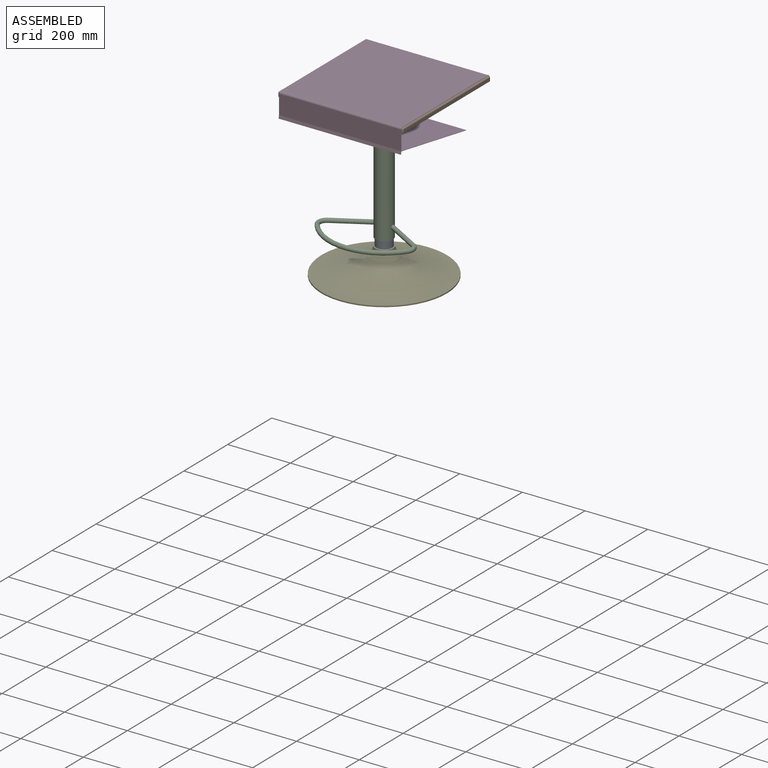
[diagram: assembled view]
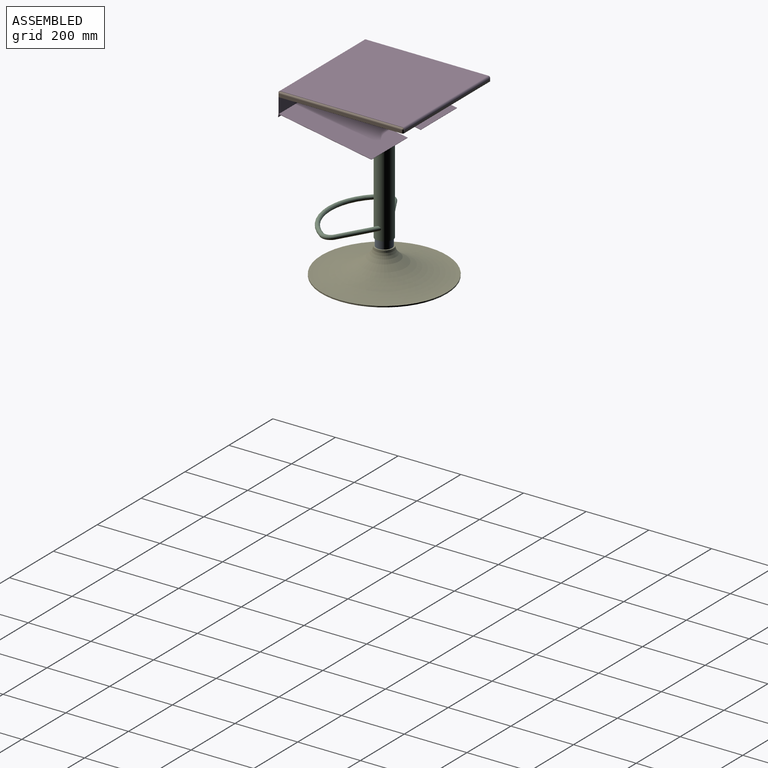
[diagram: assembled view, second angle]
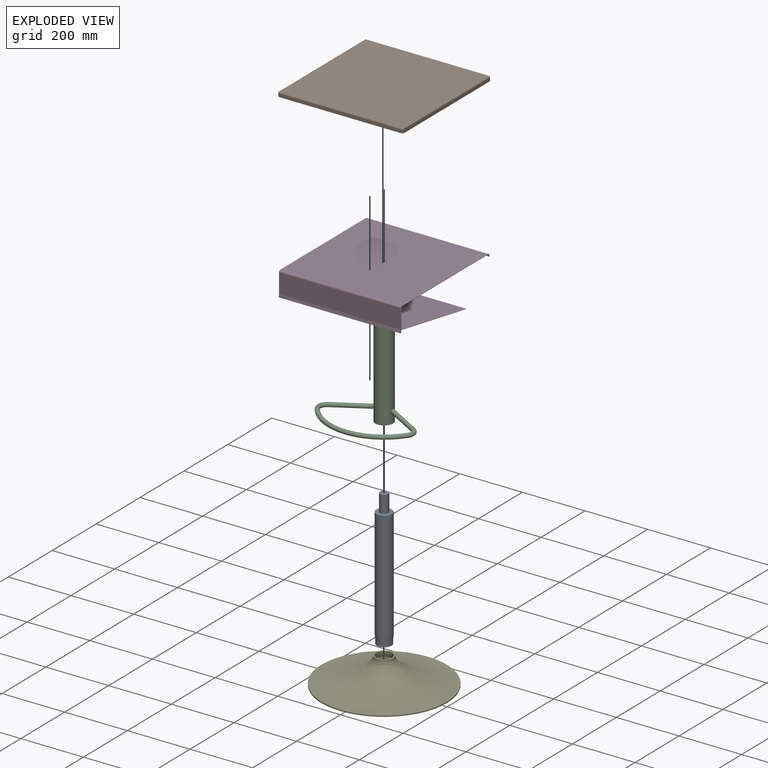
[diagram: exploded view]
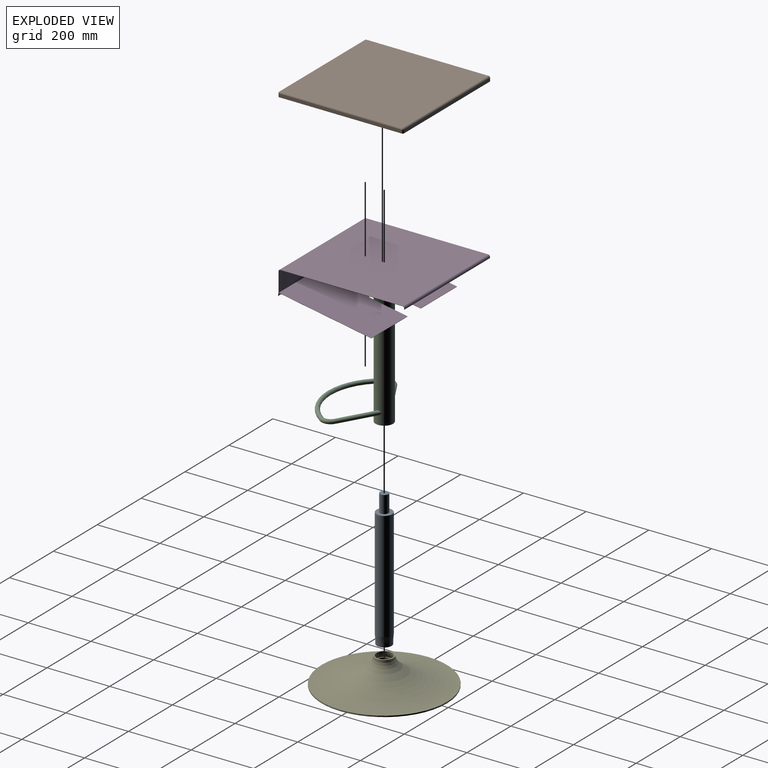
[diagram: exploded view, second angle]
ASSEMBLY  parts=5 mates=5
PART A: 7 faces, bbox 50x50x435 mm
  f0: cylinder r=25mm len=350mm, axis (0,0,-1), area 54977.9mm2, adj f1,f5
  f1: plane 50x50mm, normal (0,0,1), area 1390.9mm2, adj f0,f2
  f2: cylinder r=13.5mm len=55mm, axis (0,0,-1), area 4665.3mm2, adj f1,f3
  f3: plane 27x27mm, normal (0,0,1), area 572.6mm2, adj f2
  f4: cylinder r=23.5mm len=47mm, axis (0,0,1), area 1919.5mm2, adj f5,f6
  f5: cone r=25mm half-angle=5deg, axis (0,0,1), area 2600.3mm2, adj f0,f4
  f6: plane 47x47mm, normal (0,0,-1), area 1734.9mm2, adj f4
PART B: 34 faces, bbox 400x400x30 mm
  f0: plane 390x10mm, normal (0,-1,0), area 3900mm2, adj f5,f22,f27,f29
  f1: plane 390x10mm, normal (1,0,0), area 3900mm2, adj f5,f23,f27,f31
  f2: plane 390x10mm, normal (0,1,0), area 3900mm2, adj f5,f25,f31,f33
  f3: plane 390x10mm, normal (-1,0,0), area 3900mm2, adj f5,f24,f29,f33
  f4: plane 390x390mm, normal (0,0,1), area 152100mm2, adj f22,f23,f24,f25
  f5: plane 400x400mm, normal (0,0,-1), area 159664.4mm2, adj f0,f1,f2,f3,f7,f11,f15,f19
  f6: cylinder r=1.5mm len=15mm, axis (0,0,1), area 141.4mm2, adj f8,f9
  f7: cylinder r=5mm len=15mm, axis (0,0,1), area 471.2mm2, adj f5,f8
  f8: plane 10x10mm, normal (0,0,-1), area 71.5mm2, adj f6,f7
  f9: plane 3x3mm, normal (0,0,-1), area 7.1mm2, adj f6
  f10: cylinder r=1.5mm len=15mm, axis (0,0,1), area 141.4mm2, adj f12,f13
  f11: cylinder r=5mm len=15mm, axis (0,0,1), area 471.2mm2, adj f5,f12
  f12: plane 10x10mm, normal (0,0,-1), area 71.5mm2, adj f10,f11
  f13: plane 3x3mm, normal (0,0,-1), area 7.1mm2, adj f10
  f14: cylinder r=1.5mm len=15mm, axis (0,0,1), area 141.4mm2, adj f16,f17
  f15: cylinder r=5mm len=15mm, axis (0,0,1), area 471.2mm2, adj f5,f16
  f16: plane 10x10mm, normal (0,0,-1), area 71.5mm2, adj f14,f15
  f17: plane 3x3mm, normal (0,0,-1), area 7.1mm2, adj f14
  f18: cylinder r=1.5mm len=15mm, axis (0,0,1), area 141.4mm2, adj f20,f21
  f19: cylinder r=5mm len=15mm, axis (0,0,1), area 471.2mm2, adj f5,f20
  f20: plane 10x10mm, normal (0,0,-1), area 71.5mm2, adj f18,f19
  f21: plane 3x3mm, normal (0,0,-1), area 7.1mm2, adj f18
  f22: cylinder r=5mm len=390mm, axis (-1,0,0), area 3063.1mm2, adj f0,f4,f26,f28
  f23: cylinder r=5mm len=390mm, axis (0,-1,0), area 3063.1mm2, adj f1,f4,f26,f30
  f24: cylinder r=5mm len=390mm, axis (0,1,0), area 3063.1mm2, adj f3,f4,f28,f32
  f25: cylinder r=5mm len=390mm, axis (1,0,0), area 3063.1mm2, adj f2,f4,f30,f32
  f26: sphere r=5mm, area 39.3mm2, adj f22,f23,f27
  f27: cylinder r=5mm len=10mm, axis (0,0,1), area 78.5mm2, adj f0,f1,f5,f26
  f28: sphere r=5mm, area 39.3mm2, adj f22,f24,f29
  f29: cylinder r=5mm len=10mm, axis (0,0,-1), area 78.5mm2, adj f0,f3,f5,f28
  f30: sphere r=5mm, area 39.3mm2, adj f23,f25,f31
  f31: cylinder r=5mm len=10mm, axis (0,0,-1), area 78.5mm2, adj f1,f2,f5,f30
  f32: sphere r=5mm, area 39.3mm2, adj f24,f25,f33
  f33: cylinder r=5mm len=10mm, axis (0,0,1), area 78.5mm2, adj f2,f3,f5,f32
PART C: 34 faces, bbox 325.4x256.7x412 mm
  f0: plane 120x2mm, normal (0,1,0), area 240mm2, adj f1,f7,f8,f9
  f1: plane 120x2mm, normal (-1,0,0), area 240mm2, adj f0,f2,f8,f9
  f2: plane 120x2mm, normal (0,-1,0), area 240mm2, adj f1,f7,f8,f9
  f3: cylinder r=1.5mm len=3mm, axis (0,0,1), area 9.4mm2, adj f8,f23
  f4: cylinder r=1.5mm len=3mm, axis (0,0,1), area 9.4mm2, adj f8,f24
  f5: cylinder r=1.5mm len=3mm, axis (0,0,1), area 9.4mm2, adj f8,f26
  f6: cylinder r=1.5mm len=3mm, axis (0,0,1), area 9.4mm2, adj f8,f25
  f7: plane 120x2mm, normal (1,0,0), area 240mm2, adj f0,f2,f8,f9
  f8: plane 120x120mm, normal (0,0,-1), area 6845.2mm2, adj f0,f1,f2,f3,f4,f5,f6,f7
  f9: plane 120x120mm, normal (0,0,1), area 6467.5mm2, adj f0,f1,f2,f7,f10,f23,f24,f25
  f10: cone r=28mm half-angle=34.4deg, axis (0,0,-1), area 9531.6mm2, adj f9,f13
  f11: cone r=48.95mm half-angle=34.4deg, axis (0,0,-1), area 9258mm2, adj f8,f22
  f12: cylinder r=27mm len=355mm, axis (0,0,-1), area 60224.3mm2, adj f14,f21
  f13: cylinder r=28mm len=377.92mm, axis (0,0,-1), area 66150.9mm2, adj f10,f14,f16,f19
  f14: plane 56x56mm, normal (0,0,1), area 172.8mm2, adj f12,f13
  f15: torus R=25mm, axis (0,0,1), area 1743.3mm2, adj f16,f17
  f16: cylinder r=6.75mm len=120.02mm, axis (0.87,-0.5,0), area 5343.9mm2, adj f13,f15
  f17: torus R=175mm, axis (0,0,1), area 14455.1mm2, adj f15,f18
  f18: torus R=25mm, axis (0,0,1), area 1743.3mm2, adj f17,f19
  f19: cylinder r=6.75mm len=120.02mm, axis (0.87,0.5,0), area 5343.9mm2, adj f13,f18
  f20: cylinder r=13.5mm len=27mm, axis (0,0,-1), area 2120.6mm2, adj f21,f22
  f21: plane 54x54mm, normal (0,0,1), area 1717.7mm2, adj f12,f20
  f22: plane 54x54mm, normal (0,0,-1), area 1717.7mm2, adj f11,f20
  f23: cone r=1.5mm half-angle=45deg, axis (0,0,1), area 17.8mm2, adj f3,f9
  f24: cone r=1.5mm half-angle=45deg, axis (0,0,1), area 17.8mm2, adj f4,f9
  f25: cone r=1.5mm half-angle=45deg, axis (0,0,1), area 17.8mm2, adj f6,f9
  f26: cone r=1.5mm half-angle=45deg, axis (0,0,1), area 17.8mm2, adj f5,f9
  f27: cylinder r=4.75mm len=116.3mm, axis (0.87,-0.5,0), area 3750.4mm2, adj f29,f33
  f28: cylinder r=4.75mm len=116.3mm, axis (0.87,0.5,0), area 3750.4mm2, adj f31,f32
  f29: torus R=25mm, axis (0,0,1), area 1226.8mm2, adj f27,f30
  f30: torus R=175mm, axis (0,0,1), area 10172.1mm2, adj f29,f31
  f31: torus R=25mm, axis (0,0,1), area 1226.8mm2, adj f28,f30
  f32: cylinder r=28mm len=11.05mm, axis (0,0,-1), area 82.7mm2, adj f28
  f33: cylinder r=28mm len=11.05mm, axis (0,0,-1), area 82.6mm2, adj f27
PART D: 23 faces, bbox 390x396.5x144.9 mm
  f0: plane 165x1mm, normal (0,1,0), area 165mm2, adj f1,f5,f11,f22
  f1: plane 390x300mm, normal (0,0,-1), area 109367.9mm2, adj f0,f2,f3,f5,f18,f20,f21,f22
  f2: plane 165x1mm, normal (0,1,0), area 165mm2, adj f1,f3,f11,f21
  f3: plane 396.51x144.94mm, normal (-1,0,0), area 781.5mm2, adj f1,f2,f4,f6,f7,f8,f9,f10
  f4: plane 390x0.99mm, normal (0,0.17,-0.98), area 390mm2, adj f3,f5,f8,f14
  f5: plane 396.51x144.94mm, normal (1,0,0), area 781.5mm2, adj f0,f1,f4,f6,f7,f8,f9,f10
  f6: plane 390x384.08mm, normal (0,0.17,-0.98), area 152100mm2, adj f3,f5,f7,f9
  f7: cylinder r=5mm len=390mm, axis (1,0,0), area 3063.1mm2, adj f3,f5,f6,f8
  f8: plane 390x2.95mm, normal (0,-0.98,-0.17), area 1170mm2, adj f3,f4,f5,f7
  f9: cylinder r=5mm len=390mm, axis (1,0,0), area 3063.1mm2, adj f3,f5,f6,f10
  f10: plane 390x60.35mm, normal (0,0.98,0.17), area 23898.1mm2, adj f3,f5,f9,f11
  f11: plane 390x300mm, normal (0,0,1), area 109357.4mm2, adj f0,f2,f3,f5,f10,f20,f21,f22
  f12: plane 390x384.08mm, normal (0,-0.17,0.98), area 152100mm2, adj f3,f5,f13,f15
  f13: cylinder r=6mm len=390mm, axis (1,0,0), area 3675.7mm2, adj f3,f5,f12,f14
  f14: plane 390x2.95mm, normal (0,0.98,0.17), area 1170mm2, adj f3,f4,f5,f13
  f15: cylinder r=6mm len=390mm, axis (1,0,0), area 3675.7mm2, adj f3,f5,f12,f16
  f16: plane 390x60.26mm, normal (0,-0.98,-0.17), area 23864mm2, adj f3,f5,f15,f17
  f17: plane 390x9.91mm, normal (0,-1,0), area 3865.9mm2, adj f3,f5,f16,f19
  f18: plane 390x9mm, normal (0,1,0), area 3510mm2, adj f1,f3,f5,f19
  f19: plane 390x1mm, normal (0,0,-1), area 390mm2, adj f3,f5,f17,f18
  f20: plane 60x1mm, normal (0,0.98,0.17), area 60.9mm2, adj f1,f11,f21,f22
  f21: plane 127.38x1mm, normal (1,0,0), area 127.3mm2, adj f1,f2,f11,f20
  f22: plane 127.38x1mm, normal (-1,0,0), area 127.3mm2, adj f0,f1,f11,f20
PART E: 14 faces, bbox 400x400x85 mm
  f0: revolved ~67.71x67.71mm, area 4428.5mm2, adj f1,f13
  f1: cone r=33.81mm half-angle=39.7deg, axis (0,0,1), area 15.6mm2, adj f0,f2
  f2: revolved ~67.61x67.61mm, area 1444.5mm2, adj f1,f3
  f3: cylinder r=26.5mm len=53mm, axis (0,0,-1), area 728mm2, adj f2,f4
  f4: plane 53x53mm, normal (0,0,1), area 471.2mm2, adj f3,f5
  f5: cylinder r=23.5mm len=47mm, axis (0,0,-1), area 1667.7mm2, adj f4,f6
  f6: plane 53x53mm, normal (0,0,-1), area 471.2mm2, adj f5,f7
  f7: cylinder r=26.5mm len=53mm, axis (0,0,-1), area 333.8mm2, adj f6,f8
  f8: revolved ~69.99x69.99mm, area 1893.2mm2, adj f7,f9
  f9: cone r=33.97mm half-angle=19.1deg, axis (0,0,-1), area 676.6mm2, adj f8,f10
  f10: revolved ~400x400mm, area 257181mm2, adj f9,f11
  f11: cylinder r=200mm len=400mm, axis (0,0,-1), area 5026.5mm2, adj f10,f12
  f12: revolved ~400x400mm, area 132452.3mm2, adj f11,f13
  f13: plane 58x58mm, normal (0,0,1), area 678.6mm2, adj f0,f12
PLACE A t=(1.45,-2.75,-36.99)mm
PLACE B t=(1.45,-2.75,445.01)mm
PLACE C rot(axis=(1,0,0),180deg) t=(1.45,-2.75,428.01)mm
PLACE D rot(axis=(-1,0,0),10deg) t=(1.45,-2.75,460.01)mm
PLACE E t=(1.45,-2.75,-91.99)mm
MATE fastened B.f10 <-> C.f3  axis (0,0,-1) through (51.45,-52.75,430.01)mm
MATE fastened B.f4 <-> D.f6  axis (0,0,1) through (1.45,-2.75,460.01)mm
MATE fastened A.f2 <-> C.f20  axis (0,0,1) through (1.45,-2.75,398.01)mm
MATE fastened A.f4 <-> E.f1  axis (0,0,1) through (1.45,-2.75,-23.99)mm
MATE fastened B.f18 <-> C.f6  axis (0,0,-1) through (-48.55,47.25,430.01)mm
